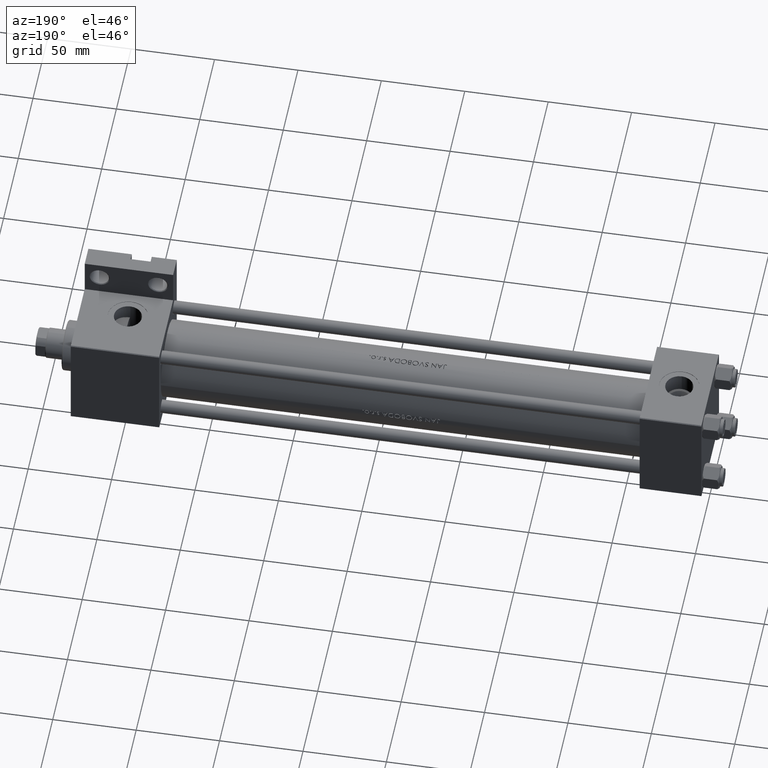
[diagram: clean part render]
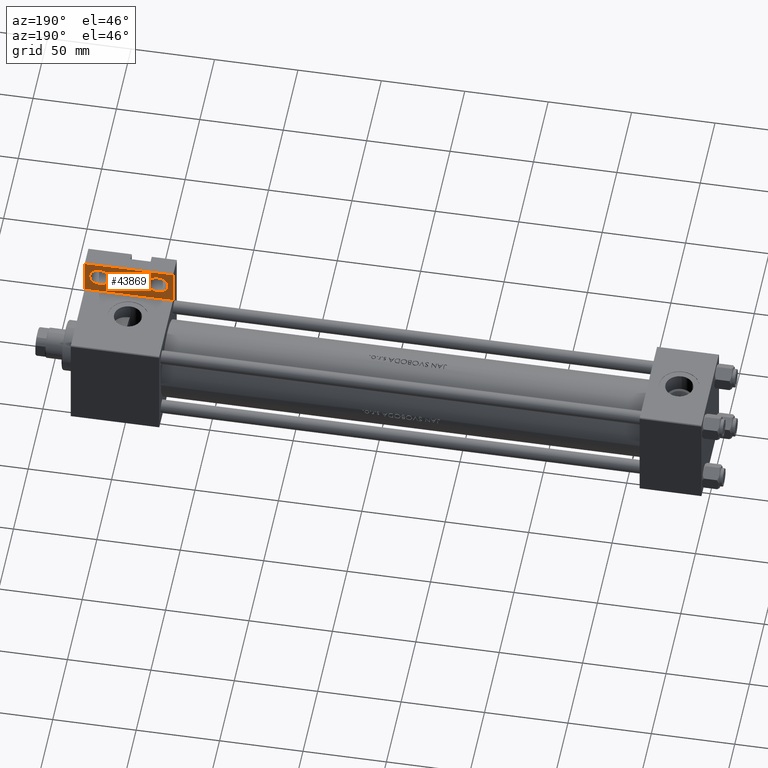
[diagram: same view with one face highlighted and labeled with its STEP entity id]
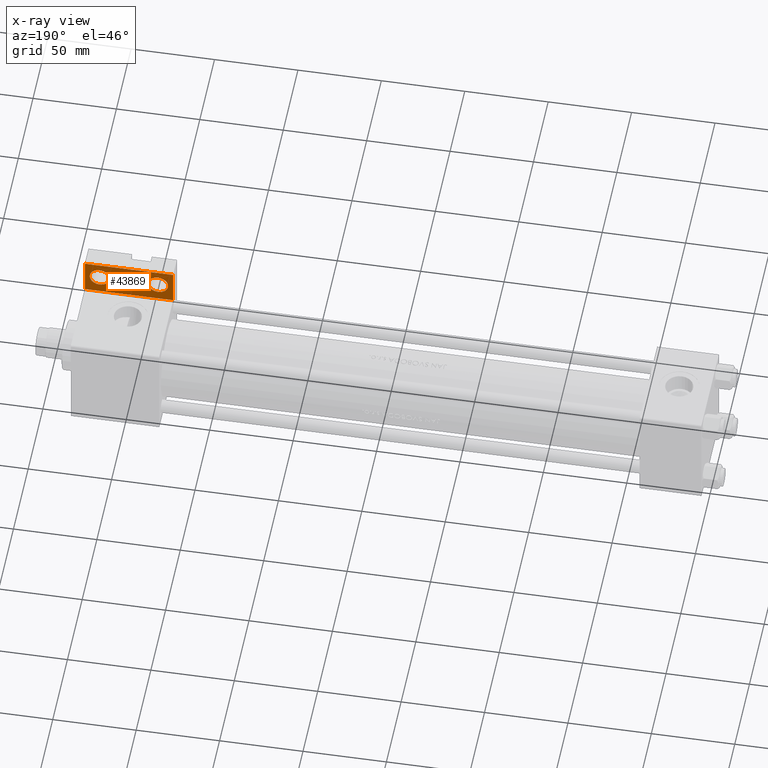
[diagram: x-ray of the same camera — body ghosted, the highlighted face saturated]
A machine part, auxiliary view. The second image highlights one B-rep face of the part: STEP entity #43869.
The next image is the same camera in x-ray: the body ghosted, the highlighted face saturated — about 0% of this face is hidden behind the body in this view.
In plain terms, the highlighted planar face has unit normal (0, -1, 0).
Its self-contained STEP definition (entity closure, byte-faithful):
#1371 = CARTESIAN_POINT ( 'NONE',  ( 333.9999999999998295, -41.50000000000002132, -17.49999999999999645 ) ) ;
#1397 = FACE_BOUND ( 'NONE', #26483, .T. ) ;
#1707 = ORIENTED_EDGE ( 'NONE', *, *, #9789, .T. ) ;
#1940 = CIRCLE ( 'NONE', #41281, 5.999499999999990507 ) ;
#2046 = CARTESIAN_POINT ( 'NONE',  ( 333.9999999999998295, -41.50000000000002132, -17.49999999999999645 ) ) ;
#2518 = AXIS2_PLACEMENT_3D ( 'NONE', #46183, #45232, #11683 ) ;
#3013 = CARTESIAN_POINT ( 'NONE',  ( 324.9999999999999432, -51.50000000000002842, -17.49999999999999645 ) ) ;
#5091 = PLANE ( 'NONE',  #28761 ) ;
#5334 = FACE_BOUND ( 'NONE', #6869, .T. ) ;
#5817 = DIRECTION ( 'NONE',  ( -1.000000000000000000, 0.000000000000000000, -0.000000000000000000 ) ) ;
#6869 = EDGE_LOOP ( 'NONE', ( #7223, #1707 ) ) ;
#6977 = VERTEX_POINT ( 'NONE', #8037 ) ;
#7223 = ORIENTED_EDGE ( 'NONE', *, *, #13636, .T. ) ;
#7489 = EDGE_CURVE ( 'NONE', #41271, #33732, #36793, .T. ) ;
#7515 = CARTESIAN_POINT ( 'NONE',  ( 324.9999999999999432, -30.00000000000000000, -17.49999999999999645 ) ) ;
#8037 = CARTESIAN_POINT ( 'NONE',  ( 339.9994999999998413, -41.50000000000002132, -17.49999999999999645 ) ) ;
#8074 = VERTEX_POINT ( 'NONE', #10948 ) ;
#9250 = DIRECTION ( 'NONE',  ( -1.000000000000000000, 0.000000000000000000, 0.000000000000000000 ) ) ;
#9767 = DIRECTION ( 'NONE',  ( 0.000000000000000000, 0.000000000000000000, -1.000000000000000000 ) ) ;
#9789 = EDGE_CURVE ( 'NONE', #8074, #33690, #30692, .T. ) ;
#10365 = CARTESIAN_POINT ( 'NONE',  ( 324.9999999999999432, -30.00000000000000000, -17.49999999999999645 ) ) ;
#10382 = EDGE_CURVE ( 'NONE', #24736, #41271, #36912, .T. ) ;
#10948 = CARTESIAN_POINT ( 'NONE',  ( 363.0004999999998745, -41.50000000000000000, -17.49999999999999645 ) ) ;
#11434 = CARTESIAN_POINT ( 'NONE',  ( 328.0004999999998745, -41.50000000000002132, -17.49999999999999645 ) ) ;
#11683 = DIRECTION ( 'NONE',  ( -1.000000000000000000, 0.000000000000000000, 0.000000000000000000 ) ) ;
#12642 = LINE ( 'NONE', #23749, #30095 ) ;
#12726 = CIRCLE ( 'NONE', #2518, 5.999499999999990507 ) ;
#12839 = VECTOR ( 'NONE', #36991, 1000.000000000000000 ) ;
#13434 = FACE_OUTER_BOUND ( 'NONE', #42814, .T. ) ;
#13503 = VERTEX_POINT ( 'NONE', #7515 ) ;
#13636 = EDGE_CURVE ( 'NONE', #33690, #8074, #12726, .T. ) ;
#13650 = ORIENTED_EDGE ( 'NONE', *, *, #14459, .F. ) ;
#14262 = ORIENTED_EDGE ( 'NONE', *, *, #10382, .F. ) ;
#14459 = EDGE_CURVE ( 'NONE', #33732, #13503, #12642, .T. ) ;
#14686 = CARTESIAN_POINT ( 'NONE',  ( 377.9999999999999432, -51.50000000000002842, -17.49999999999999645 ) ) ;
#14952 = CIRCLE ( 'NONE', #21257, 5.999499999999990507 ) ;
#17186 = EDGE_CURVE ( 'NONE', #13503, #24736, #48073, .T. ) ;
#18389 = CARTESIAN_POINT ( 'NONE',  ( 377.9999999999999432, -30.00000000000000000, -17.49999999999998224 ) ) ;
#19177 = EDGE_CURVE ( 'NONE', #6977, #29408, #1940, .T. ) ;
#19235 = ORIENTED_EDGE ( 'NONE', *, *, #28438, .T. ) ;
#21247 = DIRECTION ( 'NONE',  ( -1.000000000000000000, 0.000000000000000000, 0.000000000000000000 ) ) ;
#21257 = AXIS2_PLACEMENT_3D ( 'NONE', #1371, #38345, #9250 ) ;
#22060 = VECTOR ( 'NONE', #47765, 1000.000000000000000 ) ;
#22127 = ORIENTED_EDGE ( 'NONE', *, *, #19177, .T. ) ;
#23304 = CARTESIAN_POINT ( 'NONE',  ( 324.9999999999999432, -51.50000000000002842, -17.49999999999999645 ) ) ;
#23438 = DIRECTION ( 'NONE',  ( 0.000000000000000000, 0.000000000000000000, -1.000000000000000000 ) ) ;
#23667 = CARTESIAN_POINT ( 'NONE',  ( 368.9999999999998863, -41.50000000000000000, -17.49999999999999645 ) ) ;
#23749 = CARTESIAN_POINT ( 'NONE',  ( 324.9999999999999432, -51.50000000000002842, -17.49999999999999645 ) ) ;
#24736 = VERTEX_POINT ( 'NONE', #18389 ) ;
#25421 = DIRECTION ( 'NONE',  ( 0.000000000000000000, 0.000000000000000000, -1.000000000000000000 ) ) ;
#26483 = EDGE_LOOP ( 'NONE', ( #22127, #19235 ) ) ;
#28438 = EDGE_CURVE ( 'NONE', #29408, #6977, #14952, .T. ) ;
#28761 = AXIS2_PLACEMENT_3D ( 'NONE', #31451, #9767, #5817 ) ;
#28847 = ORIENTED_EDGE ( 'NONE', *, *, #7489, .F. ) ;
#29408 = VERTEX_POINT ( 'NONE', #11434 ) ;
#30095 = VECTOR ( 'NONE', #38554, 1000.000000000000000 ) ;
#30692 = CIRCLE ( 'NONE', #41720, 5.999499999999990507 ) ;
#31451 = CARTESIAN_POINT ( 'NONE',  ( 0.000000000000000000, 0.000000000000000000, -17.49999999999999645 ) ) ;
#33690 = VERTEX_POINT ( 'NONE', #38108 ) ;
#33732 = VERTEX_POINT ( 'NONE', #23304 ) ;
#36431 = CARTESIAN_POINT ( 'NONE',  ( 377.9999999999999432, -51.50000000000002842, -17.49999999999999645 ) ) ;
#36441 = VECTOR ( 'NONE', #48361, 1000.000000000000000 ) ;
#36793 = LINE ( 'NONE', #3013, #36441 ) ;
#36912 = LINE ( 'NONE', #36431, #22060 ) ;
#36991 = DIRECTION ( 'NONE',  ( 1.000000000000000000, -1.309225264888156623E-16, 0.000000000000000000 ) ) ;
#38108 = CARTESIAN_POINT ( 'NONE',  ( 374.9994999999998981, -41.50000000000000000, -17.49999999999999645 ) ) ;
#38345 = DIRECTION ( 'NONE',  ( 0.000000000000000000, 0.000000000000000000, -1.000000000000000000 ) ) ;
#38554 = DIRECTION ( 'NONE',  ( 0.000000000000000000, 1.000000000000000000, 0.000000000000000000 ) ) ;
#39405 = ORIENTED_EDGE ( 'NONE', *, *, #17186, .F. ) ;
#41271 = VERTEX_POINT ( 'NONE', #14686 ) ;
#41281 = AXIS2_PLACEMENT_3D ( 'NONE', #2046, #25421, #21247 ) ;
#41720 = AXIS2_PLACEMENT_3D ( 'NONE', #23667, #23438, #45862 ) ;
#42814 = EDGE_LOOP ( 'NONE', ( #14262, #39405, #13650, #28847 ) ) ;
#43869 = ADVANCED_FACE ( 'NONE', ( #5334, #1397, #13434 ), #5091, .F. ) ;
#45232 = DIRECTION ( 'NONE',  ( 0.000000000000000000, 0.000000000000000000, -1.000000000000000000 ) ) ;
#45862 = DIRECTION ( 'NONE',  ( -1.000000000000000000, 0.000000000000000000, 0.000000000000000000 ) ) ;
#46183 = CARTESIAN_POINT ( 'NONE',  ( 368.9999999999998863, -41.50000000000000000, -17.49999999999999645 ) ) ;
#47765 = DIRECTION ( 'NONE',  ( -0.000000000000000000, -1.000000000000000000, -0.000000000000000000 ) ) ;
#48073 = LINE ( 'NONE', #10365, #12839 ) ;
#48361 = DIRECTION ( 'NONE',  ( -1.000000000000000000, -0.000000000000000000, -0.000000000000000000 ) ) ;